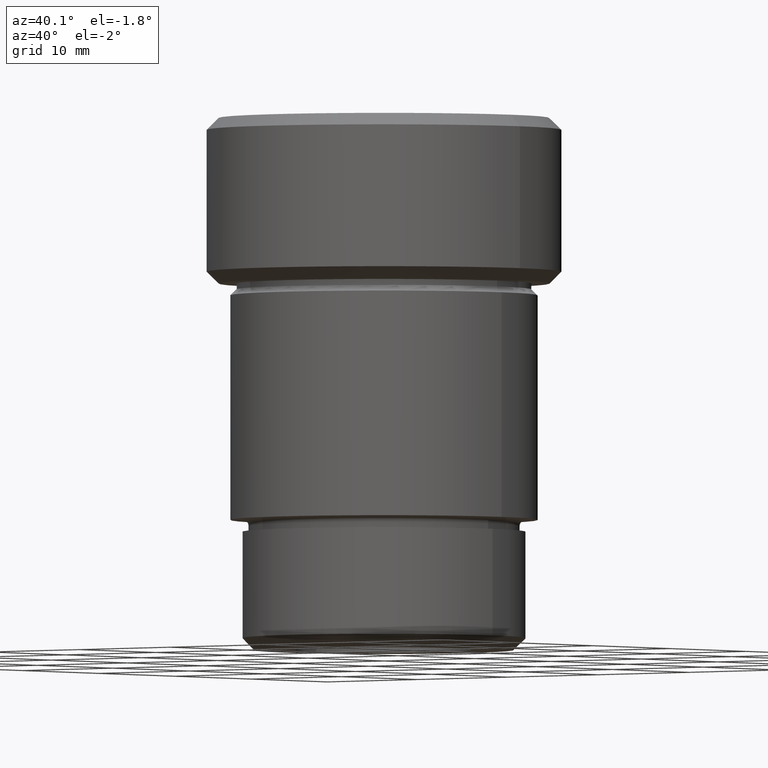
[diagram: clean part render]
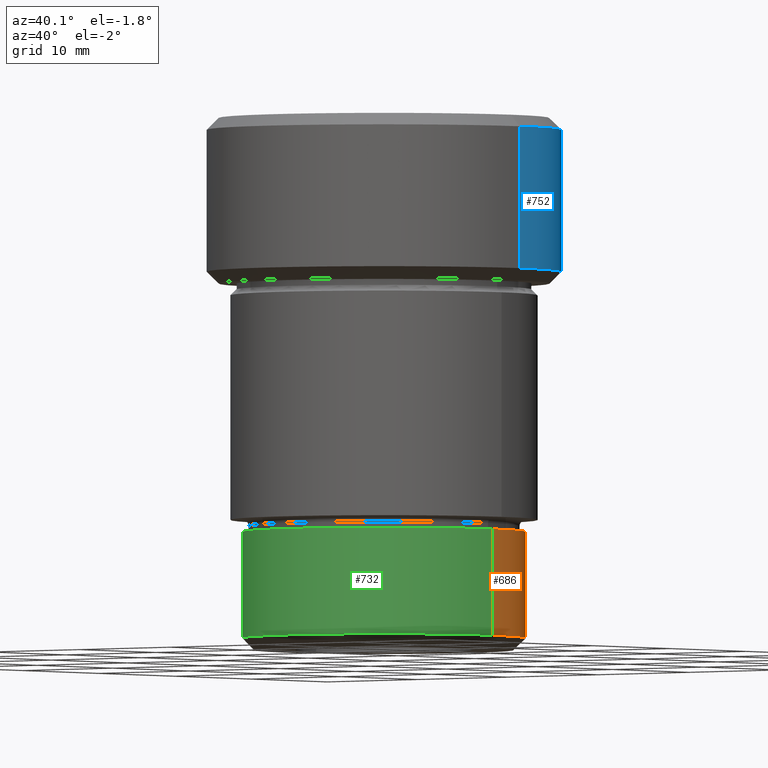
[diagram: same view with three faces highlighted in distinct colors, each labeled with its STEP entity id]
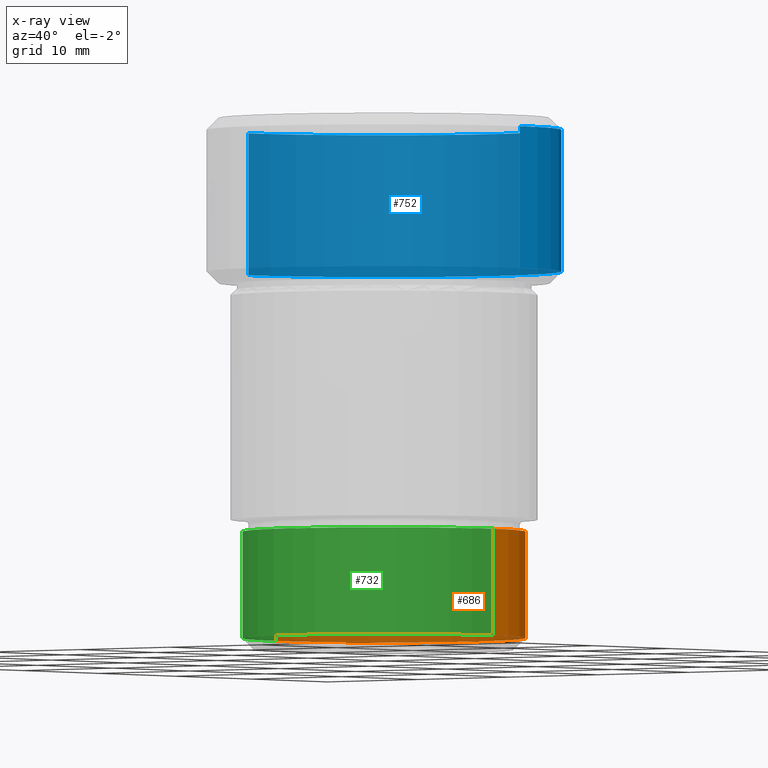
[diagram: x-ray of the same camera — body ghosted, the three highlighted faces saturated]
A machine part, auxiliary view with three faces highlighted in distinct colors.
The next image is the same camera in x-ray (body ghosted, the three faces saturated) — at least one of them is partly hidden behind the body in this view.
Their STEP definitions:

[orange] entity #686 — the highlighted cylindrical surface (partial cylindrical patch) has radius 12 mm, axis along (-0, -0, 1).
#5 = DIRECTION ( 'NONE',  ( -0.000000000000000000, -0.000000000000000000, 1.000000000000000000 ) ) ;
#15 = DIRECTION ( 'NONE',  ( -0.000000000000000000, -0.000000000000000000, 1.000000000000000000 ) ) ;
#19 = CARTESIAN_POINT ( 'NONE',  ( -12.00000000000000000, 1.469576158976823947E-15, -44.00000000000000711 ) ) ;
#45 = CARTESIAN_POINT ( 'NONE',  ( 0.000000000000000000, 0.000000000000000000, 0.000000000000000000 ) ) ;
#53 = EDGE_CURVE ( 'NONE', #766, #548, #242, .T. ) ;
#54 = CARTESIAN_POINT ( 'NONE',  ( 0.000000000000000000, 0.000000000000000000, -44.00000000000000711 ) ) ;
#104 = CARTESIAN_POINT ( 'NONE',  ( 12.00000000000000000, 0.000000000000000000, 0.000000000000000000 ) ) ;
#113 = AXIS2_PLACEMENT_3D ( 'NONE', #45, #782, #178 ) ;
#117 = ORIENTED_EDGE ( 'NONE', *, *, #523, .F. ) ;
#127 = CARTESIAN_POINT ( 'NONE',  ( 12.00000000000000178, 0.000000000000000000, -35.00000000000000000 ) ) ;
#178 = DIRECTION ( 'NONE',  ( 1.000000000000000000, 0.000000000000000000, 0.000000000000000000 ) ) ;
#184 = CYLINDRICAL_SURFACE ( 'NONE', #113, 12.00000000000000000 ) ;
#186 = EDGE_LOOP ( 'NONE', ( #370, #706, #436, #117 ) ) ;
#193 = EDGE_CURVE ( 'NONE', #288, #548, #558, .T. ) ;
#226 = EDGE_CURVE ( 'NONE', #774, #766, #270, .T. ) ;
#239 = CARTESIAN_POINT ( 'NONE',  ( -12.00000000000000355, 1.469576158976824342E-15, -35.00000000000000000 ) ) ;
#241 = DIRECTION ( 'NONE',  ( -1.000000000000000000, 0.000000000000000000, 0.000000000000000000 ) ) ;
#242 = LINE ( 'NONE', #735, #769 ) ;
#270 = CIRCLE ( 'NONE', #570, 12.00000000000000000 ) ;
#288 = VERTEX_POINT ( 'NONE', #127 ) ;
#305 = FACE_OUTER_BOUND ( 'NONE', #186, .T. ) ;
#350 = DIRECTION ( 'NONE',  ( 1.000000000000000000, 0.000000000000000000, 0.000000000000000000 ) ) ;
#370 = ORIENTED_EDGE ( 'NONE', *, *, #226, .T. ) ;
#436 = ORIENTED_EDGE ( 'NONE', *, *, #193, .F. ) ;
#464 = VECTOR ( 'NONE', #650, 1000.000000000000000 ) ;
#523 = EDGE_CURVE ( 'NONE', #774, #288, #775, .T. ) ;
#548 = VERTEX_POINT ( 'NONE', #239 ) ;
#558 = CIRCLE ( 'NONE', #618, 12.00000000000000178 ) ;
#570 = AXIS2_PLACEMENT_3D ( 'NONE', #54, #787, #241 ) ;
#618 = AXIS2_PLACEMENT_3D ( 'NONE', #708, #5, #350 ) ;
#650 = DIRECTION ( 'NONE',  ( -0.000000000000000000, -0.000000000000000000, 1.000000000000000000 ) ) ;
#686 = ADVANCED_FACE ( 'NONE', ( #305 ), #184, .T. ) ;
#706 = ORIENTED_EDGE ( 'NONE', *, *, #53, .T. ) ;
#708 = CARTESIAN_POINT ( 'NONE',  ( 0.000000000000000000, 0.000000000000000000, -35.00000000000000000 ) ) ;
#735 = CARTESIAN_POINT ( 'NONE',  ( -12.00000000000000000, 1.469576158976823947E-15, 0.000000000000000000 ) ) ;
#742 = CARTESIAN_POINT ( 'NONE',  ( 12.00000000000000000, 0.000000000000000000, -44.00000000000000711 ) ) ;
#766 = VERTEX_POINT ( 'NONE', #19 ) ;
#769 = VECTOR ( 'NONE', #15, 1000.000000000000000 ) ;
#774 = VERTEX_POINT ( 'NONE', #742 ) ;
#775 = LINE ( 'NONE', #104, #464 ) ;
#782 = DIRECTION ( 'NONE',  ( -0.000000000000000000, -0.000000000000000000, 1.000000000000000000 ) ) ;
#787 = DIRECTION ( 'NONE',  ( -0.000000000000000000, -0.000000000000000000, 1.000000000000000000 ) ) ;

[blue] entity #752 — the highlighted cylindrical surface (partial cylindrical patch) has radius 15 mm, axis along (-0, -0, 1).
#4 = ORIENTED_EDGE ( 'NONE', *, *, #757, .T. ) ;
#49 = LINE ( 'NONE', #645, #385 ) ;
#82 = CARTESIAN_POINT ( 'NONE',  ( 14.99999999999999822, 0.000000000000000000, -13.00000000000001066 ) ) ;
#85 = DIRECTION ( 'NONE',  ( 1.000000000000000000, 0.000000000000000000, 0.000000000000000000 ) ) ;
#99 = CIRCLE ( 'NONE', #325, 14.99999999999999822 ) ;
#102 = VERTEX_POINT ( 'NONE', #82 ) ;
#136 = DIRECTION ( 'NONE',  ( 1.000000000000000000, 0.000000000000000000, 0.000000000000000000 ) ) ;
#152 = AXIS2_PLACEMENT_3D ( 'NONE', #156, #564, #85 ) ;
#156 = CARTESIAN_POINT ( 'NONE',  ( 0.000000000000000000, 0.000000000000000000, -1.000000000000004441 ) ) ;
#196 = DIRECTION ( 'NONE',  ( -1.000000000000000000, 0.000000000000000000, 0.000000000000000000 ) ) ;
#235 = CARTESIAN_POINT ( 'NONE',  ( -14.99999999999999822, 1.836970198721029589E-15, -1.000000000000004441 ) ) ;
#252 = CARTESIAN_POINT ( 'NONE',  ( 0.000000000000000000, 0.000000000000000000, -13.00000000000001066 ) ) ;
#260 = VERTEX_POINT ( 'NONE', #235 ) ;
#267 = FACE_OUTER_BOUND ( 'NONE', #415, .T. ) ;
#274 = EDGE_CURVE ( 'NONE', #566, #260, #668, .T. ) ;
#325 = AXIS2_PLACEMENT_3D ( 'NONE', #252, #495, #196 ) ;
#336 = EDGE_CURVE ( 'NONE', #260, #736, #373, .T. ) ;
#341 = DIRECTION ( 'NONE',  ( -0.000000000000000000, -0.000000000000000000, 1.000000000000000000 ) ) ;
#373 = CIRCLE ( 'NONE', #152, 14.99999999999999822 ) ;
#385 = VECTOR ( 'NONE', #341, 1000.000000000000000 ) ;
#415 = EDGE_LOOP ( 'NONE', ( #4, #537, #721, #638 ) ) ;
#420 = VECTOR ( 'NONE', #605, 1000.000000000000000 ) ;
#431 = CARTESIAN_POINT ( 'NONE',  ( 0.000000000000000000, 0.000000000000000000, 0.000000000000000000 ) ) ;
#475 = CARTESIAN_POINT ( 'NONE',  ( -14.99999999999999822, 1.836970198721029589E-15, -13.00000000000001066 ) ) ;
#479 = EDGE_CURVE ( 'NONE', #102, #736, #49, .T. ) ;
#495 = DIRECTION ( 'NONE',  ( -0.000000000000000000, -0.000000000000000000, 1.000000000000000000 ) ) ;
#504 = CYLINDRICAL_SURFACE ( 'NONE', #716, 14.99999999999999822 ) ;
#537 = ORIENTED_EDGE ( 'NONE', *, *, #274, .T. ) ;
#564 = DIRECTION ( 'NONE',  ( 0.000000000000000000, 0.000000000000000000, -1.000000000000000000 ) ) ;
#565 = CARTESIAN_POINT ( 'NONE',  ( 14.99999999999999822, 0.000000000000000000, -1.000000000000004441 ) ) ;
#566 = VERTEX_POINT ( 'NONE', #475 ) ;
#605 = DIRECTION ( 'NONE',  ( -0.000000000000000000, -0.000000000000000000, 1.000000000000000000 ) ) ;
#610 = CARTESIAN_POINT ( 'NONE',  ( -14.99999999999999822, 1.836970198721029589E-15, 0.000000000000000000 ) ) ;
#611 = DIRECTION ( 'NONE',  ( -0.000000000000000000, -0.000000000000000000, 1.000000000000000000 ) ) ;
#638 = ORIENTED_EDGE ( 'NONE', *, *, #479, .F. ) ;
#645 = CARTESIAN_POINT ( 'NONE',  ( 14.99999999999999822, 0.000000000000000000, 0.000000000000000000 ) ) ;
#668 = LINE ( 'NONE', #610, #420 ) ;
#716 = AXIS2_PLACEMENT_3D ( 'NONE', #431, #611, #136 ) ;
#721 = ORIENTED_EDGE ( 'NONE', *, *, #336, .T. ) ;
#736 = VERTEX_POINT ( 'NONE', #565 ) ;
#752 = ADVANCED_FACE ( 'NONE', ( #267 ), #504, .T. ) ;
#757 = EDGE_CURVE ( 'NONE', #102, #566, #99, .T. ) ;

[green] entity #732 — the highlighted cylindrical surface (partial cylindrical patch) has radius 12 mm, axis along (-0, -0, 1).
#15 = DIRECTION ( 'NONE',  ( -0.000000000000000000, -0.000000000000000000, 1.000000000000000000 ) ) ;
#19 = CARTESIAN_POINT ( 'NONE',  ( -12.00000000000000000, 1.469576158976823947E-15, -44.00000000000000711 ) ) ;
#24 = AXIS2_PLACEMENT_3D ( 'NONE', #360, #233, #788 ) ;
#53 = EDGE_CURVE ( 'NONE', #766, #548, #242, .T. ) ;
#66 = DIRECTION ( 'NONE',  ( 1.000000000000000000, 0.000000000000000000, 0.000000000000000000 ) ) ;
#86 = CIRCLE ( 'NONE', #258, 12.00000000000000178 ) ;
#104 = CARTESIAN_POINT ( 'NONE',  ( 12.00000000000000000, 0.000000000000000000, 0.000000000000000000 ) ) ;
#127 = CARTESIAN_POINT ( 'NONE',  ( 12.00000000000000178, 0.000000000000000000, -35.00000000000000000 ) ) ;
#148 = ORIENTED_EDGE ( 'NONE', *, *, #789, .F. ) ;
#173 = CYLINDRICAL_SURFACE ( 'NONE', #24, 12.00000000000000000 ) ;
#199 = ORIENTED_EDGE ( 'NONE', *, *, #458, .T. ) ;
#233 = DIRECTION ( 'NONE',  ( -0.000000000000000000, -0.000000000000000000, 1.000000000000000000 ) ) ;
#239 = CARTESIAN_POINT ( 'NONE',  ( -12.00000000000000355, 1.469576158976824342E-15, -35.00000000000000000 ) ) ;
#242 = LINE ( 'NONE', #735, #769 ) ;
#258 = AXIS2_PLACEMENT_3D ( 'NONE', #442, #683, #66 ) ;
#288 = VERTEX_POINT ( 'NONE', #127 ) ;
#360 = CARTESIAN_POINT ( 'NONE',  ( 0.000000000000000000, 0.000000000000000000, 0.000000000000000000 ) ) ;
#372 = CARTESIAN_POINT ( 'NONE',  ( 0.000000000000000000, 0.000000000000000000, -44.00000000000000711 ) ) ;
#442 = CARTESIAN_POINT ( 'NONE',  ( 0.000000000000000000, 0.000000000000000000, -35.00000000000000000 ) ) ;
#458 = EDGE_CURVE ( 'NONE', #766, #774, #677, .T. ) ;
#464 = VECTOR ( 'NONE', #650, 1000.000000000000000 ) ;
#520 = EDGE_LOOP ( 'NONE', ( #792, #199, #651, #148 ) ) ;
#523 = EDGE_CURVE ( 'NONE', #774, #288, #775, .T. ) ;
#548 = VERTEX_POINT ( 'NONE', #239 ) ;
#619 = DIRECTION ( 'NONE',  ( -0.000000000000000000, -0.000000000000000000, 1.000000000000000000 ) ) ;
#650 = DIRECTION ( 'NONE',  ( -0.000000000000000000, -0.000000000000000000, 1.000000000000000000 ) ) ;
#651 = ORIENTED_EDGE ( 'NONE', *, *, #523, .T. ) ;
#677 = CIRCLE ( 'NONE', #758, 12.00000000000000000 ) ;
#683 = DIRECTION ( 'NONE',  ( -0.000000000000000000, -0.000000000000000000, 1.000000000000000000 ) ) ;
#715 = FACE_OUTER_BOUND ( 'NONE', #520, .T. ) ;
#732 = ADVANCED_FACE ( 'NONE', ( #715 ), #173, .T. ) ;
#735 = CARTESIAN_POINT ( 'NONE',  ( -12.00000000000000000, 1.469576158976823947E-15, 0.000000000000000000 ) ) ;
#742 = CARTESIAN_POINT ( 'NONE',  ( 12.00000000000000000, 0.000000000000000000, -44.00000000000000711 ) ) ;
#758 = AXIS2_PLACEMENT_3D ( 'NONE', #372, #619, #763 ) ;
#763 = DIRECTION ( 'NONE',  ( -1.000000000000000000, 0.000000000000000000, 0.000000000000000000 ) ) ;
#766 = VERTEX_POINT ( 'NONE', #19 ) ;
#769 = VECTOR ( 'NONE', #15, 1000.000000000000000 ) ;
#774 = VERTEX_POINT ( 'NONE', #742 ) ;
#775 = LINE ( 'NONE', #104, #464 ) ;
#788 = DIRECTION ( 'NONE',  ( 1.000000000000000000, 0.000000000000000000, 0.000000000000000000 ) ) ;
#789 = EDGE_CURVE ( 'NONE', #548, #288, #86, .T. ) ;
#792 = ORIENTED_EDGE ( 'NONE', *, *, #53, .F. ) ;